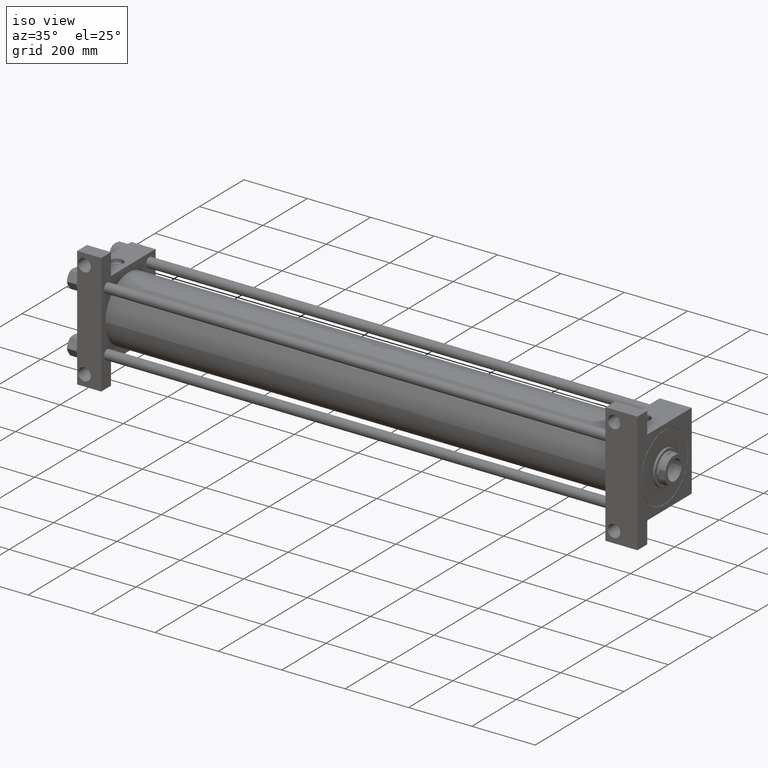
[diagram: clean part render]
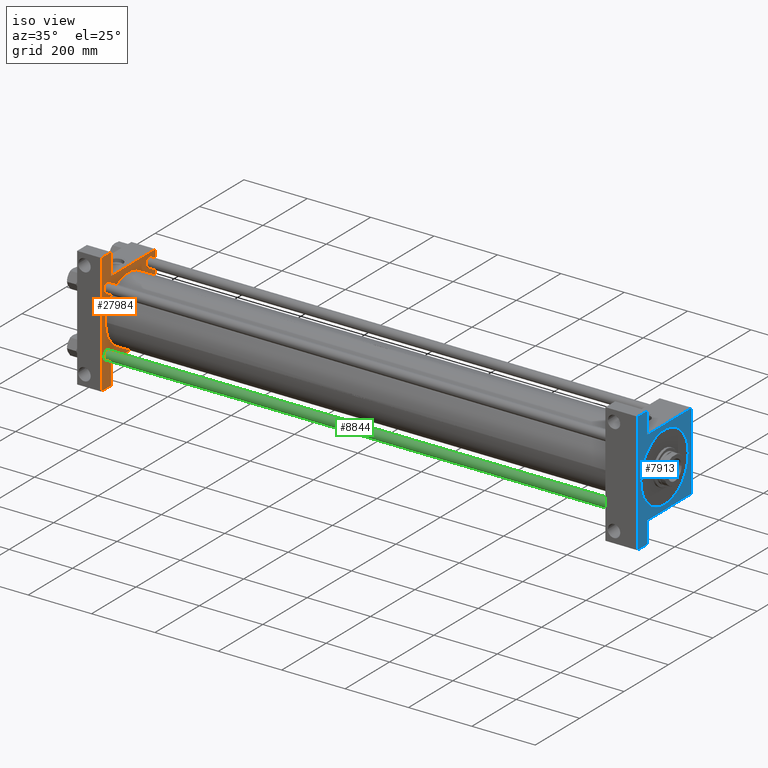
[diagram: same view with three faces highlighted in distinct colors, each labeled with its STEP entity id]
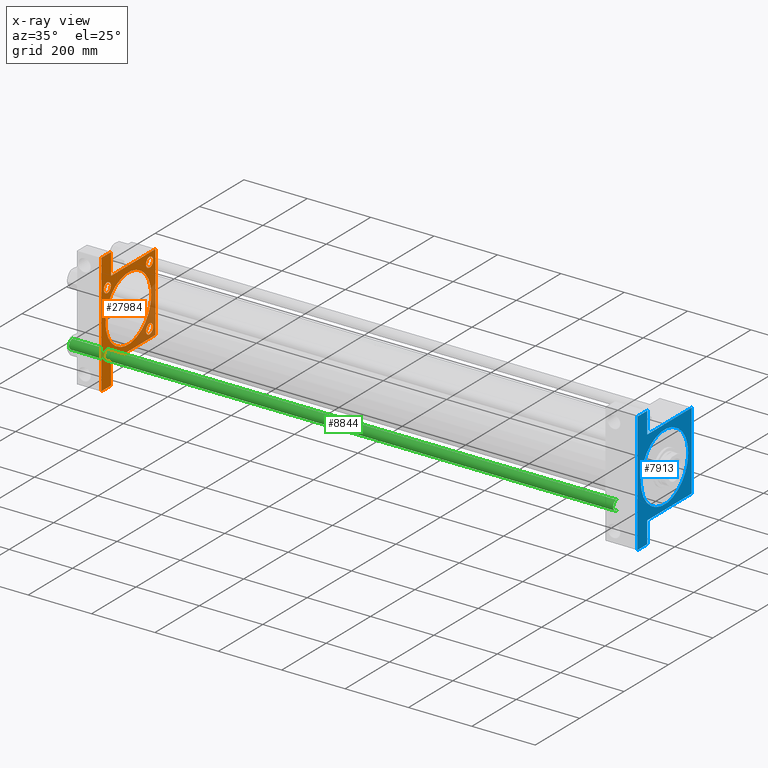
[diagram: x-ray of the same camera — body ghosted, the three highlighted faces saturated]
A machine part, iso view with three faces highlighted in distinct colors.
The next image is the same camera in x-ray (body ghosted, the three faces saturated) — at least one of them is partly hidden behind the body in this view.
Their STEP definitions:

[orange] entity #27984 — the highlighted planar face has unit normal (-1, 0, 0).
#80 = EDGE_CURVE ( 'NONE', #44515, #35621, #25037, .T. ) ;
#221 = DIRECTION ( 'NONE',  ( -1.000000000000000000, 0.000000000000000000, 0.000000000000000000 ) ) ;
#972 = ORIENTED_EDGE ( 'NONE', *, *, #2207, .F. ) ;
#1159 = CARTESIAN_POINT ( 'NONE',  ( 76.00000000000000000, -95.09999999999996589, 95.10000000000005116 ) ) ;
#1607 = CIRCLE ( 'NONE', #28847, 103.0000000000000000 ) ;
#2207 = EDGE_CURVE ( 'NONE', #18937, #44515, #8383, .T. ) ;
#2299 = EDGE_CURVE ( 'NONE', #6374, #26269, #37761, .T. ) ;
#2471 = ORIENTED_EDGE ( 'NONE', *, *, #30767, .T. ) ;
#2656 = LINE ( 'NONE', #17530, #13697 ) ;
#2718 = VERTEX_POINT ( 'NONE', #37150 ) ;
#2900 = CARTESIAN_POINT ( 'NONE',  ( 76.00000000000000000, 95.09999999999999432, -95.10000000000002274 ) ) ;
#2982 = VERTEX_POINT ( 'NONE', #43213 ) ;
#3379 = FACE_BOUND ( 'NONE', #11013, .T. ) ;
#3517 = VERTEX_POINT ( 'NONE', #14881 ) ;
#3625 = EDGE_CURVE ( 'NONE', #47253, #41856, #1607, .T. ) ;
#4263 = DIRECTION ( 'NONE',  ( -1.000000000000000000, 0.000000000000000000, 0.000000000000000000 ) ) ;
#4387 = AXIS2_PLACEMENT_3D ( 'NONE', #40408, #221, #29701 ) ;
#4480 = EDGE_CURVE ( 'NONE', #47351, #6374, #12932, .T. ) ;
#4769 = DIRECTION ( 'NONE',  ( 0.000000000000000000, -1.132880637372608493E-16, -1.000000000000000000 ) ) ;
#4967 = DIRECTION ( 'NONE',  ( -1.000000000000000000, 0.000000000000000000, 0.000000000000000000 ) ) ;
#5127 = CIRCLE ( 'NONE', #36252, 15.50000000000051337 ) ;
#5141 = CARTESIAN_POINT ( 'NONE',  ( 76.00000000000000000, -95.09999999999996589, -79.59999999999952536 ) ) ;
#5399 = VECTOR ( 'NONE', #13591, 1000.000000000000000 ) ;
#5751 = ORIENTED_EDGE ( 'NONE', *, *, #36779, .F. ) ;
#6374 = VERTEX_POINT ( 'NONE', #8571 ) ;
#6488 = CARTESIAN_POINT ( 'NONE',  ( 76.00000000000000000, -121.9999999999999716, 122.5000000000000000 ) ) ;
#6572 = ORIENTED_EDGE ( 'NONE', *, *, #2299, .T. ) ;
#7298 = LINE ( 'NONE', #15568, #18146 ) ;
#7309 = EDGE_CURVE ( 'NONE', #47422, #3517, #12647, .T. ) ;
#7445 = LINE ( 'NONE', #23285, #46056 ) ;
#8205 = VERTEX_POINT ( 'NONE', #13841 ) ;
#8292 = DIRECTION ( 'NONE',  ( 0.000000000000000000, -1.000000000000000000, -2.265761274745216987E-16 ) ) ;
#8383 = LINE ( 'NONE', #23257, #35782 ) ;
#8571 = CARTESIAN_POINT ( 'NONE',  ( 76.00000000000000000, 122.0000000000000568, 122.5000000000000284 ) ) ;
#8811 = ORIENTED_EDGE ( 'NONE', *, *, #39669, .T. ) ;
#8884 = EDGE_CURVE ( 'NONE', #46992, #20642, #43023, .T. ) ;
#9680 = CARTESIAN_POINT ( 'NONE',  ( 76.00000000000000000, -122.5000000000000000, -78.50000000000001421 ) ) ;
#9741 = DIRECTION ( 'NONE',  ( 0.000000000000000000, 0.000000000000000000, 1.000000000000000000 ) ) ;
#9760 = VECTOR ( 'NONE', #4769, 1000.000000000000000 ) ;
#9807 = ORIENTED_EDGE ( 'NONE', *, *, #14125, .T. ) ;
#10062 = ORIENTED_EDGE ( 'NONE', *, *, #11776, .F. ) ;
#10329 = CARTESIAN_POINT ( 'NONE',  ( 76.00000000000000000, 95.09999999999999432, 110.6000000000000938 ) ) ;
#10752 = VERTEX_POINT ( 'NONE', #10329 ) ;
#11013 = EDGE_LOOP ( 'NONE', ( #13850, #11787 ) ) ;
#11276 = ORIENTED_EDGE ( 'NONE', *, *, #29415, .T. ) ;
#11775 = AXIS2_PLACEMENT_3D ( 'NONE', #39908, #4263, #18256 ) ;
#11776 = EDGE_CURVE ( 'NONE', #2982, #31451, #7298, .T. ) ;
#11787 = ORIENTED_EDGE ( 'NONE', *, *, #8884, .T. ) ;
#11841 = CARTESIAN_POINT ( 'NONE',  ( 76.00000000000000000, -95.09999999999996589, -110.6000000000005627 ) ) ;
#12647 = CIRCLE ( 'NONE', #23540, 15.50000000000051337 ) ;
#12730 = EDGE_LOOP ( 'NONE', ( #8811, #33245 ) ) ;
#12743 = AXIS2_PLACEMENT_3D ( 'NONE', #2900, #40148, #32859 ) ;
#12859 = AXIS2_PLACEMENT_3D ( 'NONE', #24134, #38953, #9741 ) ;
#12932 = LINE ( 'NONE', #20967, #29633 ) ;
#12977 = CARTESIAN_POINT ( 'NONE',  ( 76.00000000000007105, 1.261386203121773761E-14, -103.5000000000000000 ) ) ;
#13180 = DIRECTION ( 'NONE',  ( 0.000000000000000000, 0.000000000000000000, 1.000000000000000000 ) ) ;
#13445 = EDGE_LOOP ( 'NONE', ( #39326, #11276 ) ) ;
#13591 = DIRECTION ( 'NONE',  ( 0.000000000000000000, -1.734723475976807341E-16, -1.000000000000000000 ) ) ;
#13697 = VECTOR ( 'NONE', #32379, 1000.000000000000000 ) ;
#13699 = CARTESIAN_POINT ( 'NONE',  ( 76.00000000000000000, -122.4999999999999716, 122.0000000000001137 ) ) ;
#13826 = CARTESIAN_POINT ( 'NONE',  ( 76.00000000000004263, 190.5000000000000284, 23.48039027185569338 ) ) ;
#13841 = CARTESIAN_POINT ( 'NONE',  ( 76.00000000000000000, 95.09999999999999432, 79.59999999999995168 ) ) ;
#13850 = ORIENTED_EDGE ( 'NONE', *, *, #47024, .T. ) ;
#14125 = EDGE_CURVE ( 'NONE', #16143, #41820, #34494, .T. ) ;
#14864 = AXIS2_PLACEMENT_3D ( 'NONE', #31035, #4967, #38082 ) ;
#14881 = CARTESIAN_POINT ( 'NONE',  ( 76.00000000000000000, -95.09999999999996589, 79.59999999999952536 ) ) ;
#15568 = CARTESIAN_POINT ( 'NONE',  ( 76.00000000000000000, -190.4999999999999147, -78.50000000000001421 ) ) ;
#16143 = VERTEX_POINT ( 'NONE', #18799 ) ;
#16601 = DIRECTION ( 'NONE',  ( 0.000000000000000000, 0.000000000000000000, 1.000000000000000000 ) ) ;
#17062 = ORIENTED_EDGE ( 'NONE', *, *, #4480, .T. ) ;
#17530 = CARTESIAN_POINT ( 'NONE',  ( 76.00000000000000000, 122.5000000000000568, 122.5000000000000284 ) ) ;
#17981 = CARTESIAN_POINT ( 'NONE',  ( 76.00000000000000000, 122.5000000000000568, 122.0000000000000853 ) ) ;
#18146 = VECTOR ( 'NONE', #30924, 1000.000000000000000 ) ;
#18256 = DIRECTION ( 'NONE',  ( 0.000000000000000000, 0.000000000000000000, 1.000000000000000000 ) ) ;
#18799 = CARTESIAN_POINT ( 'NONE',  ( 76.00000000000000000, 95.09999999999999432, -110.6000000000000938 ) ) ;
#18937 = VERTEX_POINT ( 'NONE', #38178 ) ;
#19230 = CARTESIAN_POINT ( 'NONE',  ( 76.00000000000000000, -122.4999999999999716, 122.0000000000001137 ) ) ;
#19541 = AXIS2_PLACEMENT_3D ( 'NONE', #32415, #47259, #16601 ) ;
#20642 = VERTEX_POINT ( 'NONE', #11841 ) ;
#20967 = CARTESIAN_POINT ( 'NONE',  ( 76.00000000000000000, 122.0000000000000568, 122.5000000000000284 ) ) ;
#21304 = ORIENTED_EDGE ( 'NONE', *, *, #22196, .T. ) ;
#21559 = CIRCLE ( 'NONE', #4387, 15.50000000000006928 ) ;
#21663 = FACE_BOUND ( 'NONE', #29542, .T. ) ;
#21844 = VECTOR ( 'NONE', #22886, 1000.000000000000114 ) ;
#21901 = CIRCLE ( 'NONE', #19541, 15.50000000000051337 ) ;
#22196 = EDGE_CURVE ( 'NONE', #26269, #40286, #26511, .T. ) ;
#22805 = FACE_BOUND ( 'NONE', #12730, .T. ) ;
#22886 = DIRECTION ( 'NONE',  ( -0.000000000000000000, -0.7071067811865867636, -0.7071067811865082708 ) ) ;
#23257 = CARTESIAN_POINT ( 'NONE',  ( 76.00000000000004263, 190.5000000000000284, -78.50000000000001421 ) ) ;
#23285 = CARTESIAN_POINT ( 'NONE',  ( 76.00000000000000000, -190.4999999999999147, 23.48039027185575023 ) ) ;
#23413 = CARTESIAN_POINT ( 'NONE',  ( 76.00000000000000000, 122.5000000000000568, 122.5000000000000284 ) ) ;
#23520 = AXIS2_PLACEMENT_3D ( 'NONE', #29054, #43891, #24921 ) ;
#23540 = AXIS2_PLACEMENT_3D ( 'NONE', #30995, #45836, #34857 ) ;
#23583 = AXIS2_PLACEMENT_3D ( 'NONE', #39475, #27814, #13180 ) ;
#23876 = EDGE_CURVE ( 'NONE', #41820, #16143, #44412, .T. ) ;
#24134 = CARTESIAN_POINT ( 'NONE',  ( 76.00000000000007105, 0.000000000000000000, -0.5000000000000004441 ) ) ;
#24921 = DIRECTION ( 'NONE',  ( 0.000000000000000000, 0.000000000000000000, 1.000000000000000000 ) ) ;
#25037 = LINE ( 'NONE', #13826, #5399 ) ;
#25919 = ORIENTED_EDGE ( 'NONE', *, *, #23876, .T. ) ;
#26269 = VERTEX_POINT ( 'NONE', #6488 ) ;
#26511 = LINE ( 'NONE', #19230, #21844 ) ;
#26557 = LINE ( 'NONE', #26812, #47804 ) ;
#26812 = CARTESIAN_POINT ( 'NONE',  ( 76.00000000000000000, 122.5000000000000568, -122.5000000000000000 ) ) ;
#26962 = CARTESIAN_POINT ( 'NONE',  ( 76.00000000000000000, -122.4999999999999716, 122.5000000000000000 ) ) ;
#27249 = VECTOR ( 'NONE', #40929, 1000.000000000000000 ) ;
#27814 = DIRECTION ( 'NONE',  ( -1.000000000000000000, 0.000000000000000000, 0.000000000000000000 ) ) ;
#27984 = ADVANCED_FACE ( 'NONE', ( #3379, #41523, #22805, #32861, #21663, #43564 ), #47232, .F. ) ;
#28689 = CARTESIAN_POINT ( 'NONE',  ( 76.00000000000004263, 190.5000000000000000, -78.49999999999998579 ) ) ;
#28847 = AXIS2_PLACEMENT_3D ( 'NONE', #34813, #38950, #46753 ) ;
#29054 = CARTESIAN_POINT ( 'NONE',  ( 76.00000000000000000, 95.09999999999999432, 95.10000000000002274 ) ) ;
#29415 = EDGE_CURVE ( 'NONE', #10752, #8205, #44473, .T. ) ;
#29542 = EDGE_LOOP ( 'NONE', ( #29863, #5751 ) ) ;
#29563 = CARTESIAN_POINT ( 'NONE',  ( 76.00000000000000000, 95.09999999999999432, -79.59999999999995168 ) ) ;
#29633 = VECTOR ( 'NONE', #31915, 1000.000000000000000 ) ;
#29701 = DIRECTION ( 'NONE',  ( 0.000000000000000000, 0.000000000000000000, 1.000000000000000000 ) ) ;
#29863 = ORIENTED_EDGE ( 'NONE', *, *, #3625, .F. ) ;
#30687 = CARTESIAN_POINT ( 'NONE',  ( 76.00000000000007105, 0.000000000000000000, 102.5000000000000000 ) ) ;
#30767 = EDGE_CURVE ( 'NONE', #2982, #2718, #7445, .T. ) ;
#30924 = DIRECTION ( 'NONE',  ( 0.000000000000000000, 1.000000000000000000, 0.000000000000000000 ) ) ;
#30995 = CARTESIAN_POINT ( 'NONE',  ( 76.00000000000000000, -95.09999999999996589, 95.10000000000005116 ) ) ;
#30997 = ORIENTED_EDGE ( 'NONE', *, *, #38157, .T. ) ;
#31035 = CARTESIAN_POINT ( 'NONE',  ( 76.00000000000000000, 95.09999999999999432, -95.10000000000002274 ) ) ;
#31118 = DIRECTION ( 'NONE',  ( 0.000000000000000000, 0.000000000000000000, 1.000000000000000000 ) ) ;
#31451 = VERTEX_POINT ( 'NONE', #9680 ) ;
#31915 = DIRECTION ( 'NONE',  ( 0.000000000000000000, -0.7071067811865868746, 0.7071067811865081598 ) ) ;
#32379 = DIRECTION ( 'NONE',  ( 0.000000000000000000, 0.000000000000000000, -1.000000000000000000 ) ) ;
#32415 = CARTESIAN_POINT ( 'NONE',  ( 76.00000000000000000, -95.09999999999996589, -95.10000000000005116 ) ) ;
#32859 = DIRECTION ( 'NONE',  ( 0.000000000000000000, 0.000000000000000000, 1.000000000000000000 ) ) ;
#32861 = FACE_BOUND ( 'NONE', #13445, .T. ) ;
#33245 = ORIENTED_EDGE ( 'NONE', *, *, #7309, .T. ) ;
#33534 = CARTESIAN_POINT ( 'NONE',  ( 76.00000000000000000, -95.09999999999996589, 110.6000000000005627 ) ) ;
#33840 = CIRCLE ( 'NONE', #12859, 103.0000000000000000 ) ;
#34032 = DIRECTION ( 'NONE',  ( -1.000000000000000000, 0.000000000000000000, 0.000000000000000000 ) ) ;
#34083 = ORIENTED_EDGE ( 'NONE', *, *, #39371, .F. ) ;
#34484 = LINE ( 'NONE', #26962, #9760 ) ;
#34494 = CIRCLE ( 'NONE', #12743, 15.50000000000006928 ) ;
#34813 = CARTESIAN_POINT ( 'NONE',  ( 76.00000000000007105, 0.000000000000000000, -0.5000000000000004441 ) ) ;
#34857 = DIRECTION ( 'NONE',  ( 0.000000000000000000, 0.000000000000000000, 1.000000000000000000 ) ) ;
#35142 = DIRECTION ( 'NONE',  ( 2.040851148208010217E-16, 1.000000000000000000, 0.000000000000000000 ) ) ;
#35621 = VERTEX_POINT ( 'NONE', #44334 ) ;
#35716 = EDGE_CURVE ( 'NONE', #35621, #2718, #26557, .T. ) ;
#35782 = VECTOR ( 'NONE', #35142, 1000.000000000000000 ) ;
#36252 = AXIS2_PLACEMENT_3D ( 'NONE', #1159, #34032, #31118 ) ;
#36779 = EDGE_CURVE ( 'NONE', #41856, #47253, #33840, .T. ) ;
#37150 = CARTESIAN_POINT ( 'NONE',  ( 76.00000000000000000, -190.4999999999999432, -122.5000000000000000 ) ) ;
#37761 = LINE ( 'NONE', #23413, #27249 ) ;
#38082 = DIRECTION ( 'NONE',  ( 0.000000000000000000, 0.000000000000000000, 1.000000000000000000 ) ) ;
#38109 = DIRECTION ( 'NONE',  ( 0.000000000000000000, -1.734723475976807341E-16, -1.000000000000000000 ) ) ;
#38157 = EDGE_CURVE ( 'NONE', #40286, #31451, #34484, .T. ) ;
#38178 = CARTESIAN_POINT ( 'NONE',  ( 76.00000000000002842, 122.5000000000000568, -78.50000000000001421 ) ) ;
#38950 = DIRECTION ( 'NONE',  ( 1.000000000000000000, -0.000000000000000000, -0.000000000000000000 ) ) ;
#38953 = DIRECTION ( 'NONE',  ( 1.000000000000000000, -0.000000000000000000, -0.000000000000000000 ) ) ;
#39326 = ORIENTED_EDGE ( 'NONE', *, *, #44994, .T. ) ;
#39371 = EDGE_CURVE ( 'NONE', #47351, #18937, #2656, .T. ) ;
#39475 = CARTESIAN_POINT ( 'NONE',  ( 76.00000000000000000, -95.09999999999996589, -95.10000000000005116 ) ) ;
#39669 = EDGE_CURVE ( 'NONE', #3517, #47422, #5127, .T. ) ;
#39908 = CARTESIAN_POINT ( 'NONE',  ( 76.00000000000000000, 0.000000000000000000, 0.000000000000000000 ) ) ;
#40148 = DIRECTION ( 'NONE',  ( -1.000000000000000000, 0.000000000000000000, 0.000000000000000000 ) ) ;
#40286 = VERTEX_POINT ( 'NONE', #13699 ) ;
#40408 = CARTESIAN_POINT ( 'NONE',  ( 76.00000000000000000, 95.09999999999999432, 95.10000000000002274 ) ) ;
#40929 = DIRECTION ( 'NONE',  ( 0.000000000000000000, -1.000000000000000000, -1.132880637372608740E-16 ) ) ;
#41523 = FACE_BOUND ( 'NONE', #43862, .T. ) ;
#41820 = VERTEX_POINT ( 'NONE', #29563 ) ;
#41856 = VERTEX_POINT ( 'NONE', #12977 ) ;
#43023 = CIRCLE ( 'NONE', #23583, 15.50000000000051337 ) ;
#43213 = CARTESIAN_POINT ( 'NONE',  ( 76.00000000000000000, -190.4999999999999432, -78.50000000000001421 ) ) ;
#43564 = FACE_OUTER_BOUND ( 'NONE', #45994, .T. ) ;
#43567 = ORIENTED_EDGE ( 'NONE', *, *, #80, .F. ) ;
#43862 = EDGE_LOOP ( 'NONE', ( #9807, #25919 ) ) ;
#43891 = DIRECTION ( 'NONE',  ( -1.000000000000000000, 0.000000000000000000, 0.000000000000000000 ) ) ;
#44334 = CARTESIAN_POINT ( 'NONE',  ( 76.00000000000004263, 190.5000000000000000, -122.5000000000000568 ) ) ;
#44412 = CIRCLE ( 'NONE', #14864, 15.50000000000006928 ) ;
#44473 = CIRCLE ( 'NONE', #23520, 15.50000000000006928 ) ;
#44515 = VERTEX_POINT ( 'NONE', #28689 ) ;
#44994 = EDGE_CURVE ( 'NONE', #8205, #10752, #21559, .T. ) ;
#45836 = DIRECTION ( 'NONE',  ( -1.000000000000000000, 0.000000000000000000, 0.000000000000000000 ) ) ;
#45994 = EDGE_LOOP ( 'NONE', ( #6572, #21304, #30997, #10062, #2471, #47619, #43567, #972, #34083, #17062 ) ) ;
#46056 = VECTOR ( 'NONE', #38109, 1000.000000000000000 ) ;
#46753 = DIRECTION ( 'NONE',  ( 0.000000000000000000, 0.000000000000000000, 1.000000000000000000 ) ) ;
#46992 = VERTEX_POINT ( 'NONE', #5141 ) ;
#47024 = EDGE_CURVE ( 'NONE', #20642, #46992, #21901, .T. ) ;
#47232 = PLANE ( 'NONE',  #11775 ) ;
#47253 = VERTEX_POINT ( 'NONE', #30687 ) ;
#47259 = DIRECTION ( 'NONE',  ( -1.000000000000000000, 0.000000000000000000, 0.000000000000000000 ) ) ;
#47351 = VERTEX_POINT ( 'NONE', #17981 ) ;
#47422 = VERTEX_POINT ( 'NONE', #33534 ) ;
#47619 = ORIENTED_EDGE ( 'NONE', *, *, #35716, .F. ) ;
#47804 = VECTOR ( 'NONE', #8292, 1000.000000000000000 ) ;

[blue] entity #7913 — the highlighted planar face has unit normal (-1, 0, 0).
#950 = VECTOR ( 'NONE', #20994, 1000.000000000000000 ) ;
#1230 = VECTOR ( 'NONE', #39871, 1000.000000000000000 ) ;
#1386 = EDGE_CURVE ( 'NONE', #13146, #1637, #42730, .T. ) ;
#1513 = LINE ( 'NONE', #46576, #6632 ) ;
#1637 = VERTEX_POINT ( 'NONE', #40474 ) ;
#2314 = VERTEX_POINT ( 'NONE', #15127 ) ;
#2378 = CARTESIAN_POINT ( 'NONE',  ( 1768.000000000000000, -190.5000000000001705, -78.50000000000001421 ) ) ;
#2423 = CIRCLE ( 'NONE', #8642, 106.7500000000001279 ) ;
#3119 = VECTOR ( 'NONE', #3989, 1000.000000000000000 ) ;
#3482 = LINE ( 'NONE', #32479, #13341 ) ;
#3989 = DIRECTION ( 'NONE',  ( 0.000000000000000000, -1.000000000000000000, 0.000000000000000000 ) ) ;
#4481 = CARTESIAN_POINT ( 'NONE',  ( 1768.000000000000000, 190.4999999999997726, -122.5000000000000142 ) ) ;
#5472 = EDGE_CURVE ( 'NONE', #47798, #16829, #37425, .T. ) ;
#5656 = CARTESIAN_POINT ( 'NONE',  ( 1768.000000000000000, 190.4999999999997726, -78.50000000000001421 ) ) ;
#6125 = CARTESIAN_POINT ( 'NONE',  ( 1768.000000000000000, 122.5000000000000284, 122.5000000000000426 ) ) ;
#6498 = EDGE_CURVE ( 'NONE', #47496, #29711, #38991, .T. ) ;
#6632 = VECTOR ( 'NONE', #39014, 1000.000000000000000 ) ;
#6863 = DIRECTION ( 'NONE',  ( -0.000000000000000000, -0.7071067811865573427, -0.7071067811865376918 ) ) ;
#7113 = CARTESIAN_POINT ( 'NONE',  ( 1768.000000000000000, 190.4999999999997726, -78.50000000000001421 ) ) ;
#7299 = DIRECTION ( 'NONE',  ( -1.000000000000000000, -0.000000000000000000, 0.000000000000000000 ) ) ;
#7618 = EDGE_LOOP ( 'NONE', ( #14417, #17874, #39659, #27944, #37236, #22845, #10213, #15278, #29310, #33658 ) ) ;
#7913 = ADVANCED_FACE ( 'NONE', ( #40655, #43358 ), #21690, .F. ) ;
#8299 = DIRECTION ( 'NONE',  ( 0.000000000000000000, 0.000000000000000000, 1.000000000000000000 ) ) ;
#8642 = AXIS2_PLACEMENT_3D ( 'NONE', #47530, #19033, #8299 ) ;
#9451 = LINE ( 'NONE', #2378, #1230 ) ;
#9993 = CARTESIAN_POINT ( 'NONE',  ( 1768.000000000000000, 0.000000000000000000, 0.000000000000000000 ) ) ;
#10213 = ORIENTED_EDGE ( 'NONE', *, *, #41922, .T. ) ;
#10837 = CARTESIAN_POINT ( 'NONE',  ( 1768.000000000000000, 0.000000000000000000, -0.5000000000000143219 ) ) ;
#11171 = LINE ( 'NONE', #5656, #26941 ) ;
#12458 = VERTEX_POINT ( 'NONE', #20750 ) ;
#12571 = VECTOR ( 'NONE', #25773, 1000.000000000000000 ) ;
#13146 = VERTEX_POINT ( 'NONE', #30075 ) ;
#13341 = VECTOR ( 'NONE', #35881, 1000.000000000000000 ) ;
#13448 = AXIS2_PLACEMENT_3D ( 'NONE', #9993, #7299, #40410 ) ;
#14417 = ORIENTED_EDGE ( 'NONE', *, *, #20037, .F. ) ;
#15127 = CARTESIAN_POINT ( 'NONE',  ( 1768.000000000000000, 122.5000000000000284, 122.0000000000000995 ) ) ;
#15278 = ORIENTED_EDGE ( 'NONE', *, *, #5472, .F. ) ;
#15692 = EDGE_LOOP ( 'NONE', ( #17101, #20027 ) ) ;
#15884 = CARTESIAN_POINT ( 'NONE',  ( 1768.000000000000000, -190.5000000000001705, -78.50000000000001421 ) ) ;
#16829 = VERTEX_POINT ( 'NONE', #38464 ) ;
#16833 = CARTESIAN_POINT ( 'NONE',  ( 1768.000000000000000, -121.9999999999998010, 122.5000000000000000 ) ) ;
#17101 = ORIENTED_EDGE ( 'NONE', *, *, #1386, .T. ) ;
#17874 = ORIENTED_EDGE ( 'NONE', *, *, #34223, .T. ) ;
#18654 = AXIS2_PLACEMENT_3D ( 'NONE', #10837, #25703, #40530 ) ;
#19033 = DIRECTION ( 'NONE',  ( -1.000000000000000000, -0.000000000000000000, 0.000000000000000000 ) ) ;
#19582 = CARTESIAN_POINT ( 'NONE',  ( 1768.000000000000000, -122.4999999999999858, 121.9999999999998295 ) ) ;
#20027 = ORIENTED_EDGE ( 'NONE', *, *, #28673, .T. ) ;
#20037 = EDGE_CURVE ( 'NONE', #2314, #12458, #25158, .T. ) ;
#20543 = LINE ( 'NONE', #19582, #25384 ) ;
#20725 = VERTEX_POINT ( 'NONE', #46888 ) ;
#20750 = CARTESIAN_POINT ( 'NONE',  ( 1768.000000000000000, 122.4999999999995737, -78.50000000000001421 ) ) ;
#20994 = DIRECTION ( 'NONE',  ( 0.000000000000000000, -1.000000000000000000, -1.699320956058913233E-16 ) ) ;
#21690 = PLANE ( 'NONE',  #13448 ) ;
#21890 = EDGE_CURVE ( 'NONE', #42794, #12458, #33468, .T. ) ;
#22845 = ORIENTED_EDGE ( 'NONE', *, *, #43318, .T. ) ;
#25112 = VERTEX_POINT ( 'NONE', #29943 ) ;
#25158 = LINE ( 'NONE', #43635, #47415 ) ;
#25384 = VECTOR ( 'NONE', #6863, 1000.000000000000114 ) ;
#25703 = DIRECTION ( 'NONE',  ( -1.000000000000000000, -0.000000000000000000, 0.000000000000000000 ) ) ;
#25773 = DIRECTION ( 'NONE',  ( 0.000000000000000000, -1.000000000000000000, 0.000000000000000000 ) ) ;
#26014 = CARTESIAN_POINT ( 'NONE',  ( 1768.000000000000000, 122.5000000000000284, -122.5000000000000142 ) ) ;
#26941 = VECTOR ( 'NONE', #32205, 1000.000000000000000 ) ;
#27205 = CARTESIAN_POINT ( 'NONE',  ( 1768.000000000000000, 122.0000000000000853, 122.5000000000000426 ) ) ;
#27944 = ORIENTED_EDGE ( 'NONE', *, *, #43818, .T. ) ;
#28673 = EDGE_CURVE ( 'NONE', #1637, #13146, #2423, .T. ) ;
#29310 = ORIENTED_EDGE ( 'NONE', *, *, #43640, .F. ) ;
#29711 = VERTEX_POINT ( 'NONE', #16833 ) ;
#29826 = CARTESIAN_POINT ( 'NONE',  ( 1768.000000000000000, 190.4999999999997726, -78.50000000000001421 ) ) ;
#29943 = CARTESIAN_POINT ( 'NONE',  ( 1768.000000000000000, -122.4999999999999858, 121.9999999999998295 ) ) ;
#30075 = CARTESIAN_POINT ( 'NONE',  ( 1768.000000000000000, 0.000000000000000000, -107.2500000000001421 ) ) ;
#32205 = DIRECTION ( 'NONE',  ( 0.000000000000000000, 0.000000000000000000, -1.000000000000000000 ) ) ;
#32479 = CARTESIAN_POINT ( 'NONE',  ( 1768.000000000000000, -122.4999999999999858, 122.5000000000000000 ) ) ;
#33468 = LINE ( 'NONE', #29826, #3119 ) ;
#33658 = ORIENTED_EDGE ( 'NONE', *, *, #21890, .T. ) ;
#34223 = EDGE_CURVE ( 'NONE', #2314, #47496, #40605, .T. ) ;
#35881 = DIRECTION ( 'NONE',  ( 0.000000000000000000, -1.132880637372608740E-16, -1.000000000000000000 ) ) ;
#36847 = VECTOR ( 'NONE', #36962, 1000.000000000000114 ) ;
#36962 = DIRECTION ( 'NONE',  ( 0.000000000000000000, -0.7071067811865474617, 0.7071067811865474617 ) ) ;
#37236 = ORIENTED_EDGE ( 'NONE', *, *, #48093, .T. ) ;
#37425 = LINE ( 'NONE', #26014, #12571 ) ;
#38464 = CARTESIAN_POINT ( 'NONE',  ( 1768.000000000000000, -190.5000000000001705, -122.5000000000000142 ) ) ;
#38991 = LINE ( 'NONE', #6125, #950 ) ;
#39014 = DIRECTION ( 'NONE',  ( 0.000000000000000000, 0.000000000000000000, -1.000000000000000000 ) ) ;
#39659 = ORIENTED_EDGE ( 'NONE', *, *, #6498, .T. ) ;
#39871 = DIRECTION ( 'NONE',  ( -0.000000000000000000, -1.000000000000000000, -0.000000000000000000 ) ) ;
#40410 = DIRECTION ( 'NONE',  ( 0.000000000000000000, 0.000000000000000000, 1.000000000000000000 ) ) ;
#40474 = CARTESIAN_POINT ( 'NONE',  ( 1768.000000000000000, 1.307310458089801020E-14, 106.2500000000001137 ) ) ;
#40530 = DIRECTION ( 'NONE',  ( 0.000000000000000000, 0.000000000000000000, 1.000000000000000000 ) ) ;
#40605 = LINE ( 'NONE', #47695, #36847 ) ;
#40655 = FACE_BOUND ( 'NONE', #15692, .T. ) ;
#41922 = EDGE_CURVE ( 'NONE', #46887, #16829, #1513, .T. ) ;
#42730 = CIRCLE ( 'NONE', #18654, 106.7500000000001279 ) ;
#42794 = VERTEX_POINT ( 'NONE', #7113 ) ;
#43318 = EDGE_CURVE ( 'NONE', #20725, #46887, #9451, .T. ) ;
#43358 = FACE_OUTER_BOUND ( 'NONE', #7618, .T. ) ;
#43635 = CARTESIAN_POINT ( 'NONE',  ( 1768.000000000000000, 122.5000000000000284, 122.5000000000000426 ) ) ;
#43640 = EDGE_CURVE ( 'NONE', #42794, #47798, #11171, .T. ) ;
#43818 = EDGE_CURVE ( 'NONE', #29711, #25112, #20543, .T. ) ;
#46576 = CARTESIAN_POINT ( 'NONE',  ( 1768.000000000000000, -190.5000000000001705, -78.50000000000001421 ) ) ;
#46887 = VERTEX_POINT ( 'NONE', #15884 ) ;
#46888 = CARTESIAN_POINT ( 'NONE',  ( 1768.000000000000000, -122.5000000000000142, -78.50000000000001421 ) ) ;
#47415 = VECTOR ( 'NONE', #47536, 1000.000000000000000 ) ;
#47496 = VERTEX_POINT ( 'NONE', #27205 ) ;
#47530 = CARTESIAN_POINT ( 'NONE',  ( 1768.000000000000000, 0.000000000000000000, -0.5000000000000143219 ) ) ;
#47536 = DIRECTION ( 'NONE',  ( 0.000000000000000000, 0.000000000000000000, -1.000000000000000000 ) ) ;
#47695 = CARTESIAN_POINT ( 'NONE',  ( 1768.000000000000000, 122.0000000000000853, 122.5000000000000426 ) ) ;
#47798 = VERTEX_POINT ( 'NONE', #4481 ) ;
#48093 = EDGE_CURVE ( 'NONE', #25112, #20725, #3482, .T. ) ;

[green] entity #8844 — the highlighted cylindrical surface (edge-blend (fillet) strip) has radius 15 mm, axis along (-1, 0, 0).
#358 = DIRECTION ( 'NONE',  ( -0.000000000000000000, -0.000000000000000000, -1.000000000000000000 ) ) ;
#565 = CARTESIAN_POINT ( 'NONE',  ( 0.000000000000000000, 0.000000000000000000, 0.5000000000001669775 ) ) ;
#1258 = DIRECTION ( 'NONE',  ( 0.000000000000000000, 0.000000000000000000, -1.000000000000000000 ) ) ;
#3168 = DIRECTION ( 'NONE',  ( -0.000000000000000000, -0.000000000000000000, -1.000000000000000000 ) ) ;
#3406 = ORIENTED_EDGE ( 'NONE', *, *, #24542, .T. ) ;
#7021 = VERTEX_POINT ( 'NONE', #31288 ) ;
#8844 = ADVANCED_FACE ( 'NONE', ( #28538 ), #20252, .T. ) ;
#8941 = EDGE_CURVE ( 'NONE', #20880, #7021, #43850, .T. ) ;
#12130 = CIRCLE ( 'NONE', #42422, 15.00000000000000000 ) ;
#13640 = ORIENTED_EDGE ( 'NONE', *, *, #42656, .T. ) ;
#16608 = DIRECTION ( 'NONE',  ( -0.000000000000000000, -0.000000000000000000, -1.000000000000000000 ) ) ;
#17911 = VERTEX_POINT ( 'NONE', #45234 ) ;
#18854 = ORIENTED_EDGE ( 'NONE', *, *, #8941, .F. ) ;
#20252 = CYLINDRICAL_SURFACE ( 'NONE', #25931, 15.00000000000000000 ) ;
#20880 = VERTEX_POINT ( 'NONE', #33938 ) ;
#21472 = CARTESIAN_POINT ( 'NONE',  ( -15.00000000000000000, 0.000000000000000000, 1718.000000000000000 ) ) ;
#24001 = EDGE_CURVE ( 'NONE', #20880, #17911, #35872, .T. ) ;
#24542 = EDGE_CURVE ( 'NONE', #17911, #33193, #41252, .T. ) ;
#25931 = AXIS2_PLACEMENT_3D ( 'NONE', #47033, #16608, #43127 ) ;
#26162 = DIRECTION ( 'NONE',  ( -0.000000000000000000, -0.000000000000000000, 1.000000000000000000 ) ) ;
#26560 = ORIENTED_EDGE ( 'NONE', *, *, #24001, .T. ) ;
#26685 = VECTOR ( 'NONE', #3168, 1000.000000000000000 ) ;
#28538 = FACE_OUTER_BOUND ( 'NONE', #30625, .T. ) ;
#30625 = EDGE_LOOP ( 'NONE', ( #26560, #3406, #13640, #18854 ) ) ;
#31288 = CARTESIAN_POINT ( 'NONE',  ( -15.00000000000000000, 0.000000000000000000, 0.5000000000001669775 ) ) ;
#33193 = VERTEX_POINT ( 'NONE', #39234 ) ;
#33698 = DIRECTION ( 'NONE',  ( 1.000000000000000000, 0.000000000000000000, 0.000000000000000000 ) ) ;
#33938 = CARTESIAN_POINT ( 'NONE',  ( -15.00000000000000000, 0.000000000000000000, 1717.499999999999773 ) ) ;
#34844 = CARTESIAN_POINT ( 'NONE',  ( 0.000000000000000000, 0.000000000000000000, 1717.499999999999773 ) ) ;
#35872 = CIRCLE ( 'NONE', #42087, 15.00000000000000000 ) ;
#38511 = DIRECTION ( 'NONE',  ( 1.000000000000000000, 0.000000000000000000, 0.000000000000000000 ) ) ;
#39234 = CARTESIAN_POINT ( 'NONE',  ( 15.00000000000000000, 1.836970198721029589E-15, 0.5000000000001669775 ) ) ;
#41252 = LINE ( 'NONE', #41506, #47559 ) ;
#41506 = CARTESIAN_POINT ( 'NONE',  ( 15.00000000000000000, 1.836970198721029589E-15, 1718.000000000000000 ) ) ;
#42087 = AXIS2_PLACEMENT_3D ( 'NONE', #34844, #1258, #38511 ) ;
#42422 = AXIS2_PLACEMENT_3D ( 'NONE', #565, #26162, #33698 ) ;
#42656 = EDGE_CURVE ( 'NONE', #33193, #7021, #12130, .T. ) ;
#43127 = DIRECTION ( 'NONE',  ( -1.000000000000000000, 0.000000000000000000, 0.000000000000000000 ) ) ;
#43850 = LINE ( 'NONE', #21472, #26685 ) ;
#45234 = CARTESIAN_POINT ( 'NONE',  ( 15.00000000000000000, 1.836970198721029589E-15, 1717.499999999999773 ) ) ;
#47033 = CARTESIAN_POINT ( 'NONE',  ( 0.000000000000000000, 0.000000000000000000, 1718.000000000000000 ) ) ;
#47559 = VECTOR ( 'NONE', #358, 1000.000000000000000 ) ;